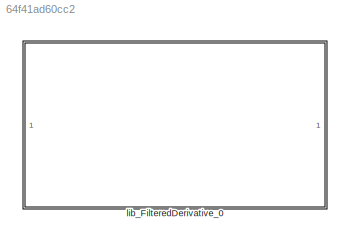
MODEL slx_64f41ad60cc2
KIND library
CONFIG AbsTol = auto
CONFIG EnableMultiTasking = off
CONFIG FixedStep = auto
CONFIG MaxStep = auto
CONFIG MinStep = auto
CONFIG RelTol = 1e-3
CONFIG SampleTimeConstraint = Unconstrained
CONFIG SolverName = VariableStepAuto
CONFIG StartTime = 0.0
CONFIG StopTime = 10.0
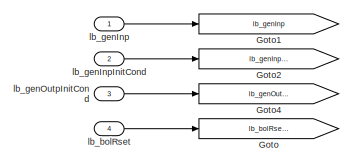
[diagram: lib_FilteredDerivative_0 - part 1/5, top left region]
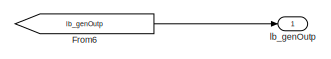
[diagram: lib_FilteredDerivative_0 - part 2/5, top right region]
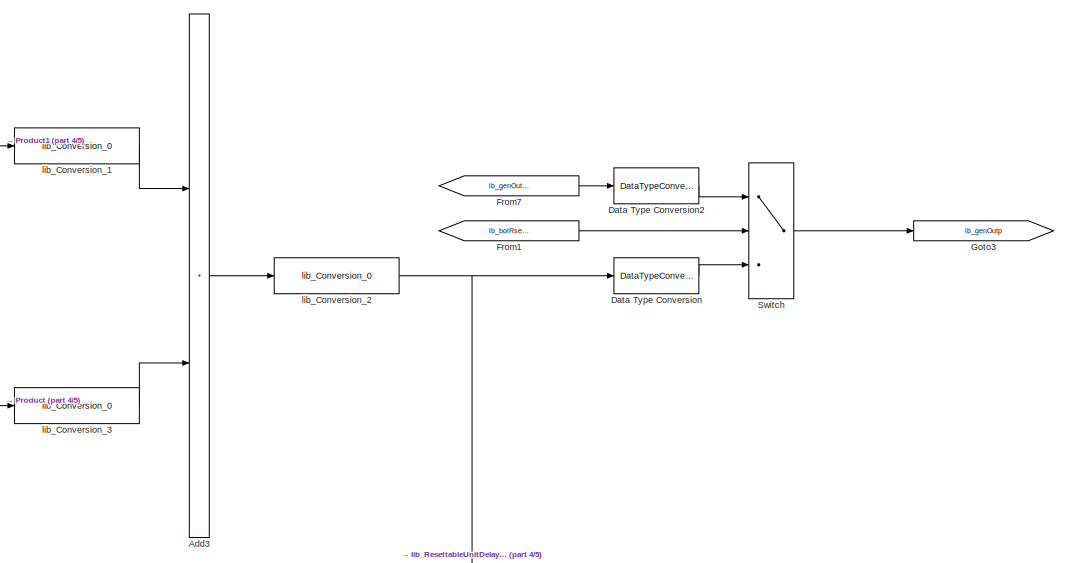
[diagram: lib_FilteredDerivative_0 - part 3/5, middle right region]
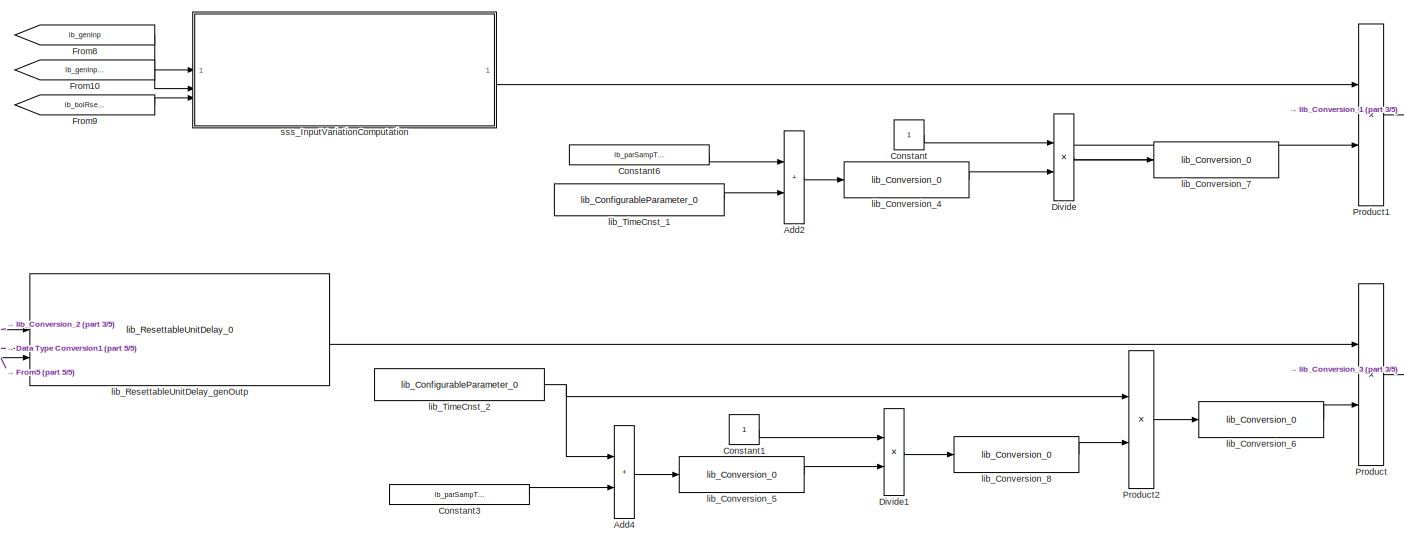
[diagram: lib_FilteredDerivative_0 - part 4/5, central region]
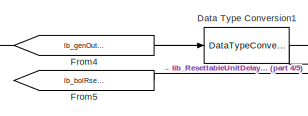
[diagram: lib_FilteredDerivative_0 - part 5/5, bottom left region]
BLOCK [SubSystem] lib_FilteredDerivative_0
BLOCK [Sum] lib_FilteredDerivative_0/Add2
  IconShape = rectangular
  OutDataTypeStr = Inherit: Inherit via back propagation
  RndMeth = Simplest
BLOCK [Sum] lib_FilteredDerivative_0/Add3
  IconShape = rectangular
  OutDataTypeStr = Inherit: Inherit via back propagation
  RndMeth = Simplest
BLOCK [Sum] lib_FilteredDerivative_0/Add4
  IconShape = rectangular
  OutDataTypeStr = Inherit: Inherit via back propagation
  RndMeth = Simplest
BLOCK [Constant] lib_FilteredDerivative_0/Constant
  OutDataTypeStr = fixdt(0,16,2^-15,0)
BLOCK [Constant] lib_FilteredDerivative_0/Constant1
  OutDataTypeStr = fixdt(0,16,2^-15,0)
BLOCK [Constant] lib_FilteredDerivative_0/Constant3
  Value = lb_parSampTime
BLOCK [Constant] lib_FilteredDerivative_0/Constant6
  Value = lb_parSampTime
BLOCK [DataTypeConversion] lib_FilteredDerivative_0/Data Type Conversion
  OutDataTypeStr = lb_parOutpDataType
  RndMeth = Floor
  SaturateOnIntegerOverflow = off
BLOCK [DataTypeConversion] lib_FilteredDerivative_0/Data Type Conversion1
  OutDataTypeStr = lb_parAccmDataType
  OutMax = lb_parAccmDataTypeMaxVal
  RndMeth = Floor
  SaturateOnIntegerOverflow = off
BLOCK [DataTypeConversion] lib_FilteredDerivative_0/Data Type Conversion2
  OutDataTypeStr = lb_parOutpDataType
  RndMeth = Floor
  SaturateOnIntegerOverflow = off
BLOCK [Product] lib_FilteredDerivative_0/Divide
  Inputs = */
  OutDataTypeStr = Inherit: Inherit via back propagation
  RndMeth = Simplest
BLOCK [Product] lib_FilteredDerivative_0/Divide1
  Inputs = */
  OutDataTypeStr = Inherit: Inherit via back propagation
  RndMeth = Simplest
BLOCK [From] lib_FilteredDerivative_0/From1
  GotoTag = lb_bolRsetCond
BLOCK [From] lib_FilteredDerivative_0/From10
  GotoTag = lb_genInpInitCond
BLOCK [From] lib_FilteredDerivative_0/From4
  GotoTag = lb_genOutpInitCond
BLOCK [From] lib_FilteredDerivative_0/From5
  GotoTag = lb_bolRsetCond
BLOCK [From] lib_FilteredDerivative_0/From6
  GotoTag = lb_genOutp
BLOCK [From] lib_FilteredDerivative_0/From7
  GotoTag = lb_genOutpInitCond
BLOCK [From] lib_FilteredDerivative_0/From8
  GotoTag = lb_genInp
BLOCK [From] lib_FilteredDerivative_0/From9
  GotoTag = lb_bolRsetCond
BLOCK [Goto] lib_FilteredDerivative_0/Goto
  GotoTag = lb_bolRsetCond
BLOCK [Goto] lib_FilteredDerivative_0/Goto1
  GotoTag = lb_genInp
BLOCK [Goto] lib_FilteredDerivative_0/Goto2
  GotoTag = lb_genInpInitCond
BLOCK [Goto] lib_FilteredDerivative_0/Goto3
  GotoTag = lb_genOutp
BLOCK [Goto] lib_FilteredDerivative_0/Goto4
  GotoTag = lb_genOutpInitCond
BLOCK [Product] lib_FilteredDerivative_0/Product
  OutDataTypeStr = Inherit: Inherit via back propagation
  RndMeth = Simplest
BLOCK [Product] lib_FilteredDerivative_0/Product1
  OutDataTypeStr = Inherit: Inherit via back propagation
  RndMeth = Simplest
BLOCK [Product] lib_FilteredDerivative_0/Product2
  OutDataTypeStr = Inherit: Inherit via back propagation
  RndMeth = Simplest
BLOCK [Switch] lib_FilteredDerivative_0/Switch
  Criteria = u2 ~= 0
  InputSameDT = off
  SaturateOnIntegerOverflow = off
BLOCK [Inport] lib_FilteredDerivative_0/lb_bolRset
  Port = 4
BLOCK [Inport] lib_FilteredDerivative_0/lb_genInp
BLOCK [Inport] lib_FilteredDerivative_0/lb_genInpInitCond
  Port = 2
BLOCK [Outport] lib_FilteredDerivative_0/lb_genOutp
BLOCK [Inport] lib_FilteredDerivative_0/lb_genOutpInitCond
  Port = 3
BLOCK [Reference] lib_FilteredDerivative_0/lib_Conversion_1  REF=lib_conversion/lib_Conversion_0  (lib defined in slx_7f5c0202220d)
  SourceBlock = lib_conversion/lib_Conversion_0
BLOCK [Reference] lib_FilteredDerivative_0/lib_Conversion_2  REF=lib_conversion/lib_Conversion_0  (lib defined in slx_7f5c0202220d)
  SourceBlock = lib_conversion/lib_Conversion_0
BLOCK [Reference] lib_FilteredDerivative_0/lib_Conversion_3  REF=lib_conversion/lib_Conversion_0  (lib defined in slx_7f5c0202220d)
  SourceBlock = lib_conversion/lib_Conversion_0
BLOCK [Reference] lib_FilteredDerivative_0/lib_Conversion_4  REF=lib_conversion/lib_Conversion_0  (lib defined in slx_7f5c0202220d)
  SourceBlock = lib_conversion/lib_Conversion_0
BLOCK [Reference] lib_FilteredDerivative_0/lib_Conversion_5  REF=lib_conversion/lib_Conversion_0  (lib defined in slx_7f5c0202220d)
  SourceBlock = lib_conversion/lib_Conversion_0
BLOCK [Reference] lib_FilteredDerivative_0/lib_Conversion_6  REF=lib_conversion/lib_Conversion_0  (lib defined in slx_7f5c0202220d)
  SourceBlock = lib_conversion/lib_Conversion_0
BLOCK [Reference] lib_FilteredDerivative_0/lib_Conversion_7  REF=lib_conversion/lib_Conversion_0  (lib defined in slx_7f5c0202220d)
  SourceBlock = lib_conversion/lib_Conversion_0
BLOCK [Reference] lib_FilteredDerivative_0/lib_Conversion_8  REF=lib_conversion/lib_Conversion_0  (lib defined in slx_7f5c0202220d)
  SourceBlock = lib_conversion/lib_Conversion_0
BLOCK [Reference] lib_FilteredDerivative_0/lib_ResettableUnitDelay_genOutp  REF=lib_resettable_unit_delay/lib_ResettableUnitDelay_0  (lib defined in slx_07610dccfeb3)
  SourceBlock = lib_resettable_unit_delay/lib_ResettableUnitDelay_0
BLOCK [Reference] lib_FilteredDerivative_0/lib_TimeCnst_1  REF=lib_configurable_parameter/lib_ConfigurableParameter_0  (lib defined in slx_5d3177bc440c)
  SourceBlock = lib_configurable_parameter/lib_ConfigurableParameter_0
BLOCK [Reference] lib_FilteredDerivative_0/lib_TimeCnst_2  REF=lib_configurable_parameter/lib_ConfigurableParameter_0  (lib defined in slx_5d3177bc440c)
  SourceBlock = lib_configurable_parameter/lib_ConfigurableParameter_0
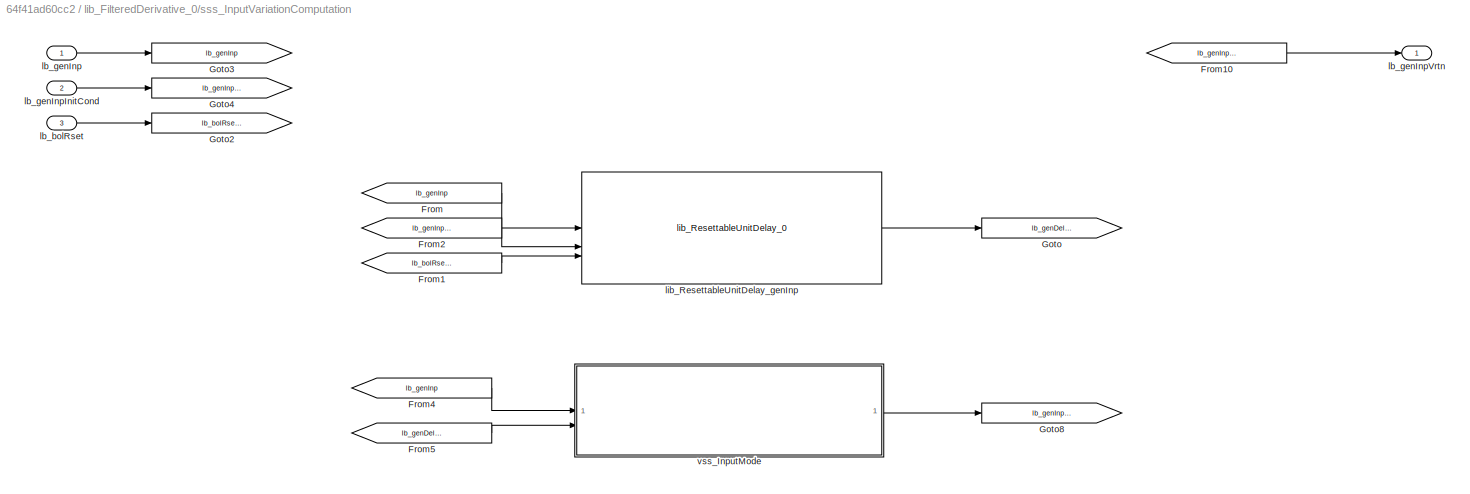
BLOCK [SubSystem] lib_FilteredDerivative_0/sss_InputVariationComputation
BLOCK [From] lib_FilteredDerivative_0/sss_InputVariationComputation/From
  GotoTag = lb_genInp
BLOCK [From] lib_FilteredDerivative_0/sss_InputVariationComputation/From1
  GotoTag = lb_bolRsetCond
BLOCK [From] lib_FilteredDerivative_0/sss_InputVariationComputation/From10
  GotoTag = lb_genInpVrtn
BLOCK [From] lib_FilteredDerivative_0/sss_InputVariationComputation/From2
  GotoTag = lb_genInpInitCond
BLOCK [From] lib_FilteredDerivative_0/sss_InputVariationComputation/From4
  GotoTag = lb_genInp
BLOCK [From] lib_FilteredDerivative_0/sss_InputVariationComputation/From5
  GotoTag = lb_genDelInp
BLOCK [Goto] lib_FilteredDerivative_0/sss_InputVariationComputation/Goto
  GotoTag = lb_genDelInp
BLOCK [Goto] lib_FilteredDerivative_0/sss_InputVariationComputation/Goto2
  GotoTag = lb_bolRsetCond
BLOCK [Goto] lib_FilteredDerivative_0/sss_InputVariationComputation/Goto3
  GotoTag = lb_genInp
BLOCK [Goto] lib_FilteredDerivative_0/sss_InputVariationComputation/Goto4
  GotoTag = lb_genInpInitCond
BLOCK [Goto] lib_FilteredDerivative_0/sss_InputVariationComputation/Goto8
  GotoTag = lb_genInpVrtn
BLOCK [Inport] lib_FilteredDerivative_0/sss_InputVariationComputation/lb_bolRset
  Port = 3
BLOCK [Inport] lib_FilteredDerivative_0/sss_InputVariationComputation/lb_genInp
BLOCK [Inport] lib_FilteredDerivative_0/sss_InputVariationComputation/lb_genInpInitCond
  Port = 2
BLOCK [Outport] lib_FilteredDerivative_0/sss_InputVariationComputation/lb_genInpVrtn
BLOCK [Reference] lib_FilteredDerivative_0/sss_InputVariationComputation/lib_ResettableUnitDelay_genInp  REF=lib_resettable_unit_delay/lib_ResettableUnitDelay_0  (lib defined in slx_07610dccfeb3)
  LibrarySourceBlock = vhit_control_library/lib_ResettableUnitDelay_0
  SourceBlock = lib_resettable_unit_delay/lib_ResettableUnitDelay_0
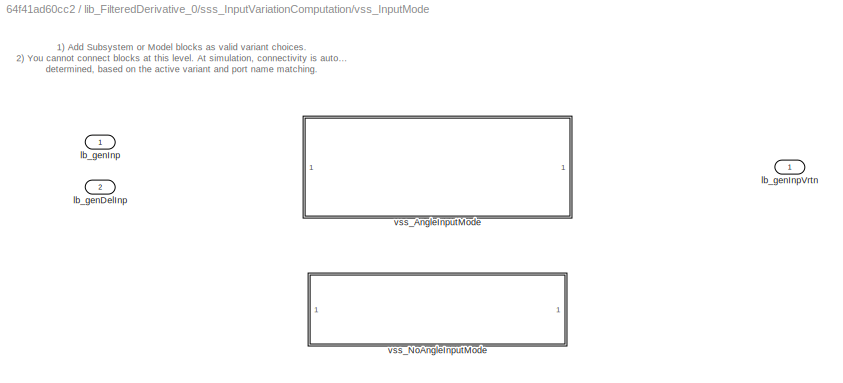
BLOCK [SubSystem] lib_FilteredDerivative_0/sss_InputVariationComputation/vss_InputMode
  LabelModeActiveChoice = lb_parAngInpModeLbl
  Variant = on
  VariantControlMode = label
BLOCK [Inport] lib_FilteredDerivative_0/sss_InputVariationComputation/vss_InputMode/lb_genDelInp
  Port = 2
BLOCK [Inport] lib_FilteredDerivative_0/sss_InputVariationComputation/vss_InputMode/lb_genInp
BLOCK [Outport] lib_FilteredDerivative_0/sss_InputVariationComputation/vss_InputMode/lb_genInpVrtn
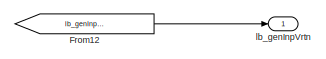
[diagram: lib_FilteredDerivative_0/sss_InputVariationComputation/vss_InputMode/vss_AngleInputMode - part 1/3, top right region]
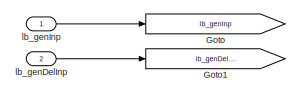
[diagram: lib_FilteredDerivative_0/sss_InputVariationComputation/vss_InputMode/vss_AngleInputMode - part 2/3, top left region]
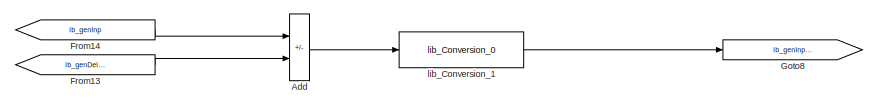
[diagram: lib_FilteredDerivative_0/sss_InputVariationComputation/vss_InputMode/vss_AngleInputMode - part 3/3, bottom left region]
BLOCK [SubSystem] lib_FilteredDerivative_0/sss_InputVariationComputation/vss_InputMode/vss_AngleInputMode
  VariantControl = lb_parAngInpModeLbl
BLOCK [Sum] lib_FilteredDerivative_0/sss_InputVariationComputation/vss_InputMode/vss_AngleInputMode/Add
  IconShape = rectangular
  Inputs = +-
  OutDataTypeStr = Inherit: Inherit via back propagation
  RndMeth = Simplest
BLOCK [From] lib_FilteredDerivative_0/sss_InputVariationComputation/vss_InputMode/vss_AngleInputMode/From12
  GotoTag = lb_genInpVrtn
BLOCK [From] lib_FilteredDerivative_0/sss_InputVariationComputation/vss_InputMode/vss_AngleInputMode/From13
  GotoTag = lb_genDelInp
BLOCK [From] lib_FilteredDerivative_0/sss_InputVariationComputation/vss_InputMode/vss_AngleInputMode/From14
  GotoTag = lb_genInp
BLOCK [Goto] lib_FilteredDerivative_0/sss_InputVariationComputation/vss_InputMode/vss_AngleInputMode/Goto
  GotoTag = lb_genInp
BLOCK [Goto] lib_FilteredDerivative_0/sss_InputVariationComputation/vss_InputMode/vss_AngleInputMode/Goto1
  GotoTag = lb_genDelInp
BLOCK [Goto] lib_FilteredDerivative_0/sss_InputVariationComputation/vss_InputMode/vss_AngleInputMode/Goto8
  GotoTag = lb_genInpVrtn
BLOCK [Inport] lib_FilteredDerivative_0/sss_InputVariationComputation/vss_InputMode/vss_AngleInputMode/lb_genDelInp
  Port = 2
BLOCK [Inport] lib_FilteredDerivative_0/sss_InputVariationComputation/vss_InputMode/vss_AngleInputMode/lb_genInp
BLOCK [Outport] lib_FilteredDerivative_0/sss_InputVariationComputation/vss_InputMode/vss_AngleInputMode/lb_genInpVrtn
BLOCK [Reference] lib_FilteredDerivative_0/sss_InputVariationComputation/vss_InputMode/vss_AngleInputMode/lib_Conversion_1  REF=lib_conversion/lib_Conversion_0  (lib defined in slx_7f5c0202220d)
  SourceBlock = lib_conversion/lib_Conversion_0
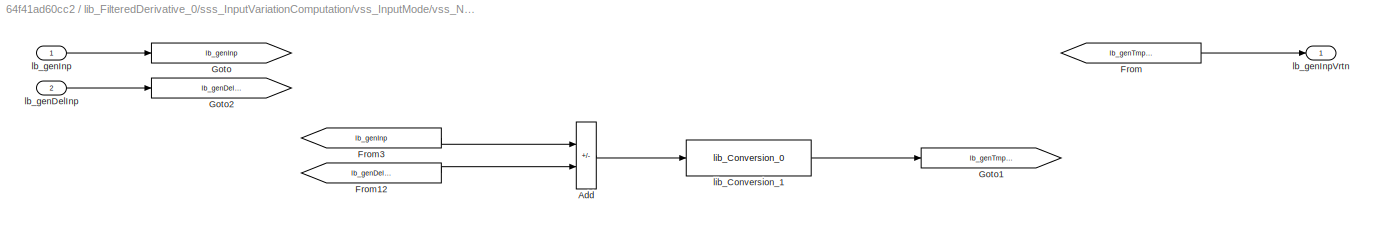
BLOCK [SubSystem] lib_FilteredDerivative_0/sss_InputVariationComputation/vss_InputMode/vss_NoAngleInputMode
  VariantControl = lb_parNoAngInpModeLbl
BLOCK [Sum] lib_FilteredDerivative_0/sss_InputVariationComputation/vss_InputMode/vss_NoAngleInputMode/Add
  IconShape = rectangular
  Inputs = +-
  OutDataTypeStr = Inherit: Inherit via back propagation
  RndMeth = Simplest
BLOCK [From] lib_FilteredDerivative_0/sss_InputVariationComputation/vss_InputMode/vss_NoAngleInputMode/From
  GotoTag = lb_genTmprInpVrtn
BLOCK [From] lib_FilteredDerivative_0/sss_InputVariationComputation/vss_InputMode/vss_NoAngleInputMode/From12
  GotoTag = lb_genDelInp
BLOCK [From] lib_FilteredDerivative_0/sss_InputVariationComputation/vss_InputMode/vss_NoAngleInputMode/From3
  GotoTag = lb_genInp
BLOCK [Goto] lib_FilteredDerivative_0/sss_InputVariationComputation/vss_InputMode/vss_NoAngleInputMode/Goto
  GotoTag = lb_genInp
BLOCK [Goto] lib_FilteredDerivative_0/sss_InputVariationComputation/vss_InputMode/vss_NoAngleInputMode/Goto1
  GotoTag = lb_genTmprInpVrtn
BLOCK [Goto] lib_FilteredDerivative_0/sss_InputVariationComputation/vss_InputMode/vss_NoAngleInputMode/Goto2
  GotoTag = lb_genDelInp
BLOCK [Inport] lib_FilteredDerivative_0/sss_InputVariationComputation/vss_InputMode/vss_NoAngleInputMode/lb_genDelInp
  Port = 2
BLOCK [Inport] lib_FilteredDerivative_0/sss_InputVariationComputation/vss_InputMode/vss_NoAngleInputMode/lb_genInp
BLOCK [Outport] lib_FilteredDerivative_0/sss_InputVariationComputation/vss_InputMode/vss_NoAngleInputMode/lb_genInpVrtn
BLOCK [Reference] lib_FilteredDerivative_0/sss_InputVariationComputation/vss_InputMode/vss_NoAngleInputMode/lib_Conversion_1  REF=lib_conversion/lib_Conversion_0  (lib defined in slx_7f5c0202220d)
  SourceBlock = lib_conversion/lib_Conversion_0
ANNOTATION lib_FilteredDerivative_0/sss_InputVariationComputation/vss_InputMode: 1) Add Subsystem or Model blocks as valid variant choices. 2) You cannot connect blocks at this level. At simulation, connectivity is automatically determined, based on the active variant and port name matching.
LINE lib_FilteredDerivative_0/Add2:1 -> lib_FilteredDerivative_0/lib_Conversion_4:1
LINE lib_FilteredDerivative_0/Add3:1 -> lib_FilteredDerivative_0/lib_Conversion_2:1
LINE lib_FilteredDerivative_0/Add4:1 -> lib_FilteredDerivative_0/lib_Conversion_5:1
LINE lib_FilteredDerivative_0/Constant1:1 -> lib_FilteredDerivative_0/Divide1:1
LINE lib_FilteredDerivative_0/Constant3:1 -> lib_FilteredDerivative_0/Add4:2
LINE lib_FilteredDerivative_0/Constant6:1 -> lib_FilteredDerivative_0/Add2:1
LINE lib_FilteredDerivative_0/Constant:1 -> lib_FilteredDerivative_0/Divide:1
LINE lib_FilteredDerivative_0/Data Type Conversion1:1 -> lib_FilteredDerivative_0/lib_ResettableUnitDelay_genOutp:2
LINE lib_FilteredDerivative_0/Data Type Conversion2:1 -> lib_FilteredDerivative_0/Switch:1
LINE lib_FilteredDerivative_0/Data Type Conversion:1 -> lib_FilteredDerivative_0/Switch:3
LINE lib_FilteredDerivative_0/Divide1:1 -> lib_FilteredDerivative_0/lib_Conversion_8:1
LINE lib_FilteredDerivative_0/Divide:1 -> lib_FilteredDerivative_0/lib_Conversion_7:1
LINE lib_FilteredDerivative_0/From10:1 -> lib_FilteredDerivative_0/sss_InputVariationComputation:2
LINE lib_FilteredDerivative_0/From1:1 -> lib_FilteredDerivative_0/Switch:2
LINE lib_FilteredDerivative_0/From4:1 -> lib_FilteredDerivative_0/Data Type Conversion1:1
LINE lib_FilteredDerivative_0/From5:1 -> lib_FilteredDerivative_0/lib_ResettableUnitDelay_genOutp:3
LINE lib_FilteredDerivative_0/From6:1 -> lib_FilteredDerivative_0/lb_genOutp:1
LINE lib_FilteredDerivative_0/From7:1 -> lib_FilteredDerivative_0/Data Type Conversion2:1
LINE lib_FilteredDerivative_0/From8:1 -> lib_FilteredDerivative_0/sss_InputVariationComputation:1
LINE lib_FilteredDerivative_0/From9:1 -> lib_FilteredDerivative_0/sss_InputVariationComputation:3
LINE lib_FilteredDerivative_0/Product1:1 -> lib_FilteredDerivative_0/lib_Conversion_1:1
LINE lib_FilteredDerivative_0/Product2:1 -> lib_FilteredDerivative_0/lib_Conversion_6:1
LINE lib_FilteredDerivative_0/Product:1 -> lib_FilteredDerivative_0/lib_Conversion_3:1
LINE lib_FilteredDerivative_0/Switch:1 -> lib_FilteredDerivative_0/Goto3:1
LINE lib_FilteredDerivative_0/lb_bolRset:1 -> lib_FilteredDerivative_0/Goto:1
LINE lib_FilteredDerivative_0/lb_genInp:1 -> lib_FilteredDerivative_0/Goto1:1
LINE lib_FilteredDerivative_0/lb_genInpInitCond:1 -> lib_FilteredDerivative_0/Goto2:1
LINE lib_FilteredDerivative_0/lb_genOutpInitCond:1 -> lib_FilteredDerivative_0/Goto4:1
LINE lib_FilteredDerivative_0/lib_Conversion_1:1 -> lib_FilteredDerivative_0/Add3:1
NET lib_FilteredDerivative_0/lib_Conversion_2:1 -> lib_FilteredDerivative_0/Data Type Conversion:1, lib_FilteredDerivative_0/lib_ResettableUnitDelay_genOutp:1
LINE lib_FilteredDerivative_0/lib_Conversion_3:1 -> lib_FilteredDerivative_0/Add3:2
LINE lib_FilteredDerivative_0/lib_Conversion_4:1 -> lib_FilteredDerivative_0/Divide:2
LINE lib_FilteredDerivative_0/lib_Conversion_5:1 -> lib_FilteredDerivative_0/Divide1:2
LINE lib_FilteredDerivative_0/lib_Conversion_6:1 -> lib_FilteredDerivative_0/Product:2
LINE lib_FilteredDerivative_0/lib_Conversion_7:1 -> lib_FilteredDerivative_0/Product1:2
LINE lib_FilteredDerivative_0/lib_Conversion_8:1 -> lib_FilteredDerivative_0/Product2:2
LINE lib_FilteredDerivative_0/lib_ResettableUnitDelay_genOutp:1 -> lib_FilteredDerivative_0/Product:1
LINE lib_FilteredDerivative_0/lib_TimeCnst_1:1 -> lib_FilteredDerivative_0/Add2:2
NET lib_FilteredDerivative_0/lib_TimeCnst_2:1 -> lib_FilteredDerivative_0/Add4:1, lib_FilteredDerivative_0/Product2:1
LINE lib_FilteredDerivative_0/sss_InputVariationComputation/From10:1 -> lib_FilteredDerivative_0/sss_InputVariationComputation/lb_genInpVrtn:1
LINE lib_FilteredDerivative_0/sss_InputVariationComputation/From1:1 -> lib_FilteredDerivative_0/sss_InputVariationComputation/lib_ResettableUnitDelay_genInp:3
LINE lib_FilteredDerivative_0/sss_InputVariationComputation/From2:1 -> lib_FilteredDerivative_0/sss_InputVariationComputation/lib_ResettableUnitDelay_genInp:2
LINE lib_FilteredDerivative_0/sss_InputVariationComputation/From4:1 -> lib_FilteredDerivative_0/sss_InputVariationComputation/vss_InputMode:1
LINE lib_FilteredDerivative_0/sss_InputVariationComputation/From5:1 -> lib_FilteredDerivative_0/sss_InputVariationComputation/vss_InputMode:2
LINE lib_FilteredDerivative_0/sss_InputVariationComputation/From:1 -> lib_FilteredDerivative_0/sss_InputVariationComputation/lib_ResettableUnitDelay_genInp:1
LINE lib_FilteredDerivative_0/sss_InputVariationComputation/lb_bolRset:1 -> lib_FilteredDerivative_0/sss_InputVariationComputation/Goto2:1
LINE lib_FilteredDerivative_0/sss_InputVariationComputation/lb_genInp:1 -> lib_FilteredDerivative_0/sss_InputVariationComputation/Goto3:1
LINE lib_FilteredDerivative_0/sss_InputVariationComputation/lb_genInpInitCond:1 -> lib_FilteredDerivative_0/sss_InputVariationComputation/Goto4:1
LINE lib_FilteredDerivative_0/sss_InputVariationComputation/lib_ResettableUnitDelay_genInp:1 -> lib_FilteredDerivative_0/sss_InputVariationComputation/Goto:1
LINE lib_FilteredDerivative_0/sss_InputVariationComputation/vss_InputMode/vss_AngleInputMode/Add:1 -> lib_FilteredDerivative_0/sss_InputVariationComputation/vss_InputMode/vss_AngleInputMode/lib_Conversion_1:1
LINE lib_FilteredDerivative_0/sss_InputVariationComputation/vss_InputMode/vss_AngleInputMode/From12:1 -> lib_FilteredDerivative_0/sss_InputVariationComputation/vss_InputMode/vss_AngleInputMode/lb_genInpVrtn:1
LINE lib_FilteredDerivative_0/sss_InputVariationComputation/vss_InputMode/vss_AngleInputMode/From13:1 -> lib_FilteredDerivative_0/sss_InputVariationComputation/vss_InputMode/vss_AngleInputMode/Add:2
LINE lib_FilteredDerivative_0/sss_InputVariationComputation/vss_InputMode/vss_AngleInputMode/From14:1 -> lib_FilteredDerivative_0/sss_InputVariationComputation/vss_InputMode/vss_AngleInputMode/Add:1
LINE lib_FilteredDerivative_0/sss_InputVariationComputation/vss_InputMode/vss_AngleInputMode/lb_genDelInp:1 -> lib_FilteredDerivative_0/sss_InputVariationComputation/vss_InputMode/vss_AngleInputMode/Goto1:1
LINE lib_FilteredDerivative_0/sss_InputVariationComputation/vss_InputMode/vss_AngleInputMode/lb_genInp:1 -> lib_FilteredDerivative_0/sss_InputVariationComputation/vss_InputMode/vss_AngleInputMode/Goto:1
LINE lib_FilteredDerivative_0/sss_InputVariationComputation/vss_InputMode/vss_AngleInputMode/lib_Conversion_1:1 -> lib_FilteredDerivative_0/sss_InputVariationComputation/vss_InputMode/vss_AngleInputMode/Goto8:1
LINE lib_FilteredDerivative_0/sss_InputVariationComputation/vss_InputMode/vss_NoAngleInputMode/Add:1 -> lib_FilteredDerivative_0/sss_InputVariationComputation/vss_InputMode/vss_NoAngleInputMode/lib_Conversion_1:1
LINE lib_FilteredDerivative_0/sss_InputVariationComputation/vss_InputMode/vss_NoAngleInputMode/From12:1 -> lib_FilteredDerivative_0/sss_InputVariationComputation/vss_InputMode/vss_NoAngleInputMode/Add:2
LINE lib_FilteredDerivative_0/sss_InputVariationComputation/vss_InputMode/vss_NoAngleInputMode/From3:1 -> lib_FilteredDerivative_0/sss_InputVariationComputation/vss_InputMode/vss_NoAngleInputMode/Add:1
LINE lib_FilteredDerivative_0/sss_InputVariationComputation/vss_InputMode/vss_NoAngleInputMode/From:1 -> lib_FilteredDerivative_0/sss_InputVariationComputation/vss_InputMode/vss_NoAngleInputMode/lb_genInpVrtn:1
LINE lib_FilteredDerivative_0/sss_InputVariationComputation/vss_InputMode/vss_NoAngleInputMode/lb_genDelInp:1 -> lib_FilteredDerivative_0/sss_InputVariationComputation/vss_InputMode/vss_NoAngleInputMode/Goto2:1
LINE lib_FilteredDerivative_0/sss_InputVariationComputation/vss_InputMode/vss_NoAngleInputMode/lb_genInp:1 -> lib_FilteredDerivative_0/sss_InputVariationComputation/vss_InputMode/vss_NoAngleInputMode/Goto:1
LINE lib_FilteredDerivative_0/sss_InputVariationComputation/vss_InputMode/vss_NoAngleInputMode/lib_Conversion_1:1 -> lib_FilteredDerivative_0/sss_InputVariationComputation/vss_InputMode/vss_NoAngleInputMode/Goto1:1
LINE lib_FilteredDerivative_0/sss_InputVariationComputation/vss_InputMode:1 -> lib_FilteredDerivative_0/sss_InputVariationComputation/Goto8:1
LINE lib_FilteredDerivative_0/sss_InputVariationComputation:1 -> lib_FilteredDerivative_0/Product1:1
note: NET lines group one-source signal fan-out (src -> all destinations, sorted); 1:1 wires keep LINE
